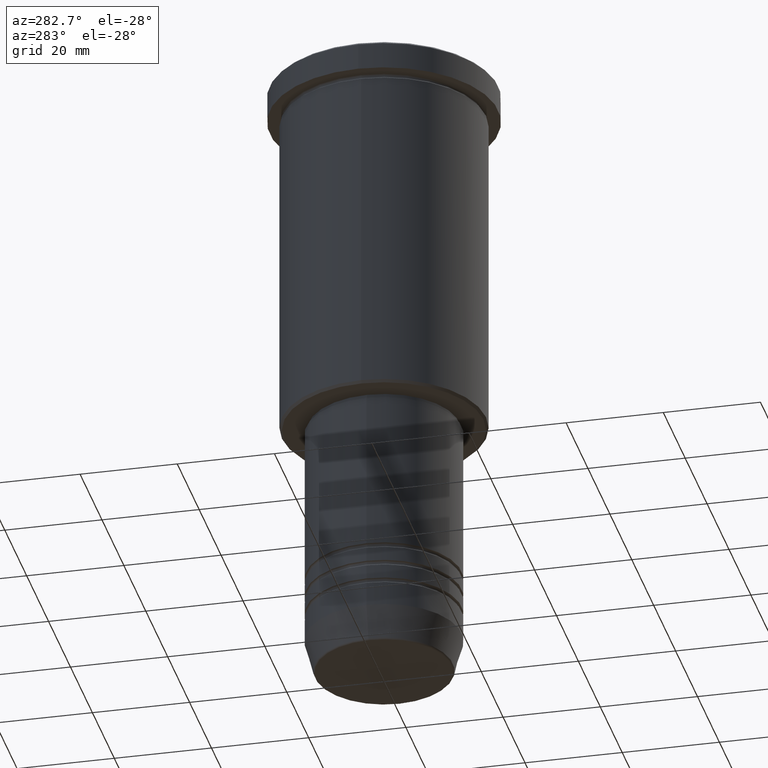
[diagram: clean part render]
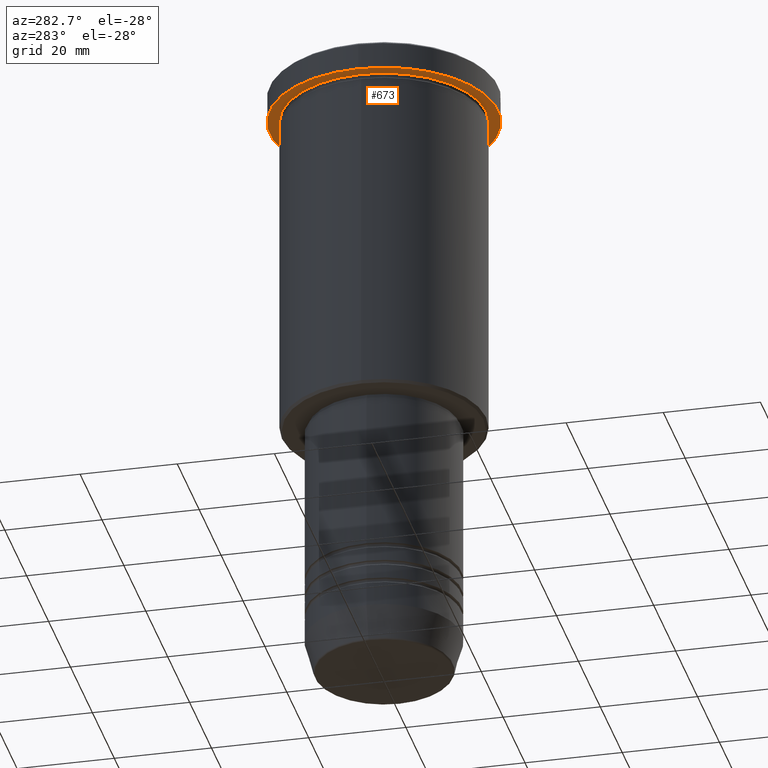
[diagram: same view with one face highlighted and labeled with its STEP entity id]
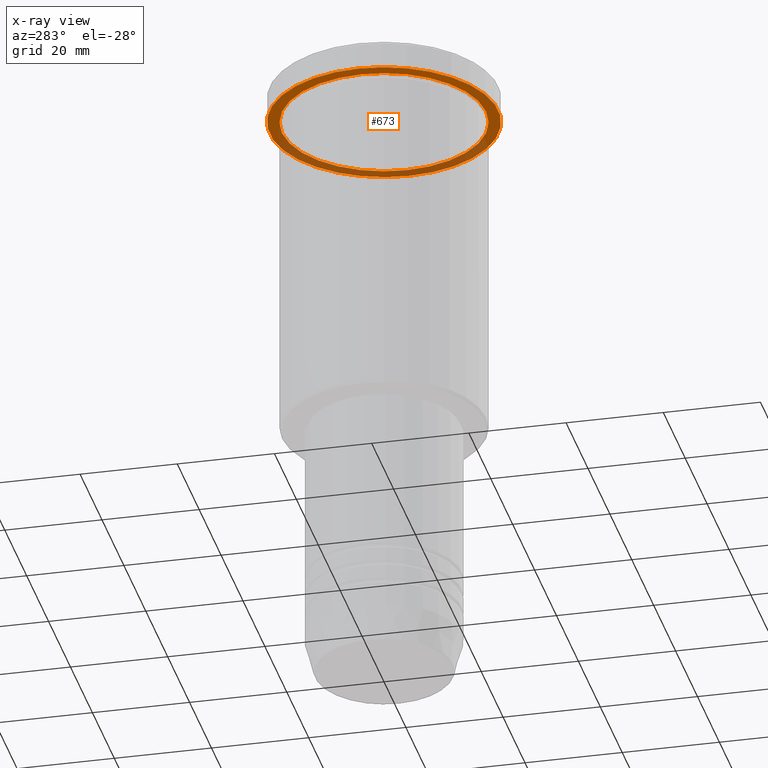
[diagram: x-ray of the same camera — body ghosted, the highlighted face saturated]
A machine part, auxiliary view. The second image highlights one B-rep face of the part: STEP entity #673.
The next image is the same camera in x-ray: the body ghosted, the highlighted face saturated — about 38% of this face is hidden behind the body in this view.
In plain terms, the highlighted planar face has unit normal (0, 0, -1).
Its self-contained STEP definition (entity closure, byte-faithful):
#38 = CIRCLE ( 'NONE', #317, 23.50000000000000000 ) ;
#58 = CARTESIAN_POINT ( 'NONE',  ( -21.00000000000000000, 0.000000000000000000, -5.999999999999992895 ) ) ;
#133 = CARTESIAN_POINT ( 'NONE',  ( 23.50000000000000000, 0.000000000000000000, -5.999999999999993783 ) ) ;
#168 = EDGE_LOOP ( 'NONE', ( #1168, #587 ) ) ;
#207 = CARTESIAN_POINT ( 'NONE',  ( 21.00000000000000000, 2.571758278209441661E-15, -5.999999999999992895 ) ) ;
#220 = DIRECTION ( 'NONE',  ( -1.000000000000000000, 0.000000000000000000, -0.000000000000000000 ) ) ;
#223 = EDGE_LOOP ( 'NONE', ( #629, #745 ) ) ;
#233 = FACE_BOUND ( 'NONE', #168, .T. ) ;
#238 = CARTESIAN_POINT ( 'NONE',  ( 0.000000000000000000, 23.50000000000000000, -5.999999999999993783 ) ) ;
#243 = AXIS2_PLACEMENT_3D ( 'NONE', #238, #1040, #220 ) ;
#268 = CIRCLE ( 'NONE', #723, 23.50000000000000000 ) ;
#303 = CARTESIAN_POINT ( 'NONE',  ( 0.000000000000000000, 0.000000000000000000, -5.999999999999993783 ) ) ;
#317 = AXIS2_PLACEMENT_3D ( 'NONE', #303, #781, #789 ) ;
#349 = VERTEX_POINT ( 'NONE', #1007 ) ;
#358 = DIRECTION ( 'NONE',  ( -0.000000000000000000, -0.000000000000000000, 1.000000000000000000 ) ) ;
#398 = EDGE_CURVE ( 'NONE', #856, #349, #268, .T. ) ;
#436 = DIRECTION ( 'NONE',  ( -1.000000000000000000, 0.000000000000000000, 0.000000000000000000 ) ) ;
#512 = CARTESIAN_POINT ( 'NONE',  ( 0.000000000000000000, 0.000000000000000000, -5.999999999999993783 ) ) ;
#514 = CIRCLE ( 'NONE', #1179, 21.00000000000000000 ) ;
#551 = AXIS2_PLACEMENT_3D ( 'NONE', #512, #1052, #951 ) ;
#587 = ORIENTED_EDGE ( 'NONE', *, *, #974, .T. ) ;
#629 = ORIENTED_EDGE ( 'NONE', *, *, #398, .F. ) ;
#639 = VERTEX_POINT ( 'NONE', #58 ) ;
#673 = ADVANCED_FACE ( 'NONE', ( #233, #691 ), #1060, .T. ) ;
#691 = FACE_OUTER_BOUND ( 'NONE', #223, .T. ) ;
#723 = AXIS2_PLACEMENT_3D ( 'NONE', #818, #358, #1086 ) ;
#745 = ORIENTED_EDGE ( 'NONE', *, *, #911, .F. ) ;
#781 = DIRECTION ( 'NONE',  ( -0.000000000000000000, -0.000000000000000000, 1.000000000000000000 ) ) ;
#789 = DIRECTION ( 'NONE',  ( 1.000000000000000000, 0.000000000000000000, 0.000000000000000000 ) ) ;
#818 = CARTESIAN_POINT ( 'NONE',  ( 0.000000000000000000, 0.000000000000000000, -5.999999999999993783 ) ) ;
#856 = VERTEX_POINT ( 'NONE', #133 ) ;
#867 = EDGE_CURVE ( 'NONE', #639, #885, #1057, .T. ) ;
#885 = VERTEX_POINT ( 'NONE', #207 ) ;
#911 = EDGE_CURVE ( 'NONE', #349, #856, #38, .T. ) ;
#951 = DIRECTION ( 'NONE',  ( -1.000000000000000000, 0.000000000000000000, 0.000000000000000000 ) ) ;
#974 = EDGE_CURVE ( 'NONE', #885, #639, #514, .T. ) ;
#1007 = CARTESIAN_POINT ( 'NONE',  ( -23.50000000000000000, 2.877919977996280320E-15, -5.999999999999993783 ) ) ;
#1040 = DIRECTION ( 'NONE',  ( 0.000000000000000000, 0.000000000000000000, -1.000000000000000000 ) ) ;
#1052 = DIRECTION ( 'NONE',  ( -0.000000000000000000, -0.000000000000000000, 1.000000000000000000 ) ) ;
#1057 = CIRCLE ( 'NONE', #551, 21.00000000000000000 ) ;
#1058 = DIRECTION ( 'NONE',  ( -0.000000000000000000, -0.000000000000000000, 1.000000000000000000 ) ) ;
#1060 = PLANE ( 'NONE',  #243 ) ;
#1086 = DIRECTION ( 'NONE',  ( 1.000000000000000000, 0.000000000000000000, 0.000000000000000000 ) ) ;
#1166 = CARTESIAN_POINT ( 'NONE',  ( 0.000000000000000000, 0.000000000000000000, -5.999999999999993783 ) ) ;
#1168 = ORIENTED_EDGE ( 'NONE', *, *, #867, .T. ) ;
#1179 = AXIS2_PLACEMENT_3D ( 'NONE', #1166, #1058, #436 ) ;